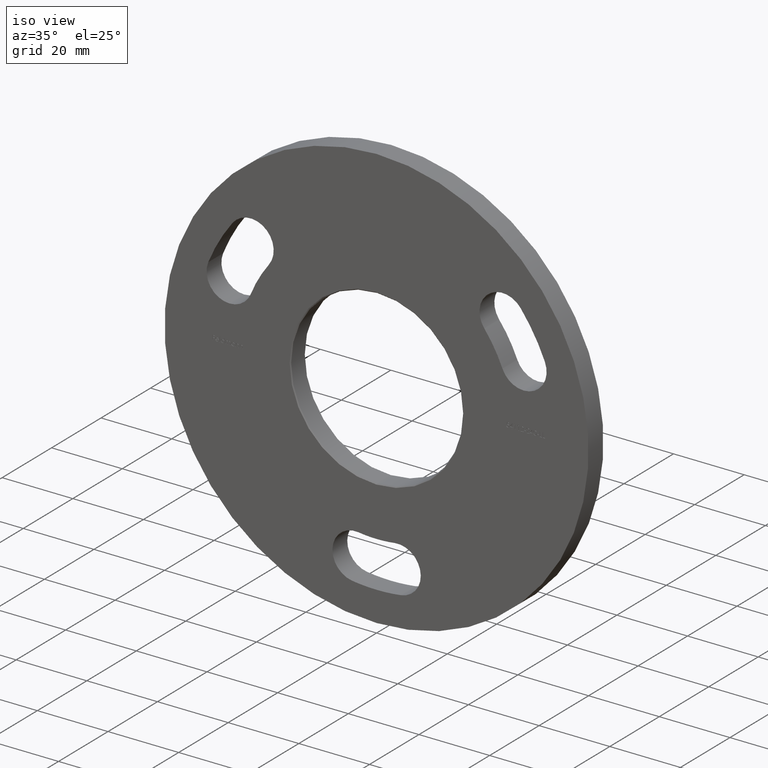
[diagram: clean part render]
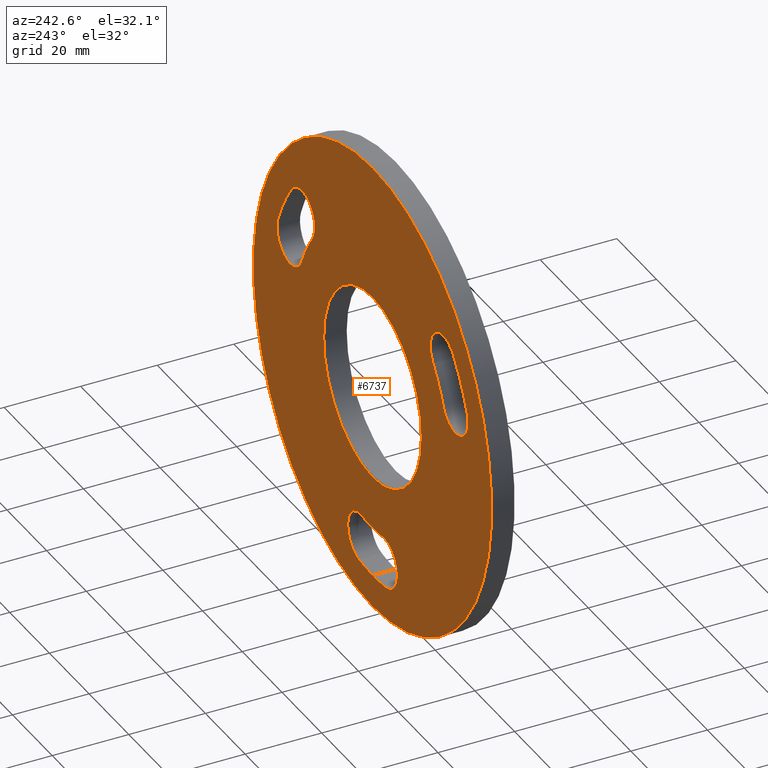
[diagram: tour spotlight — one face highlighted and labeled with its STEP entity id]
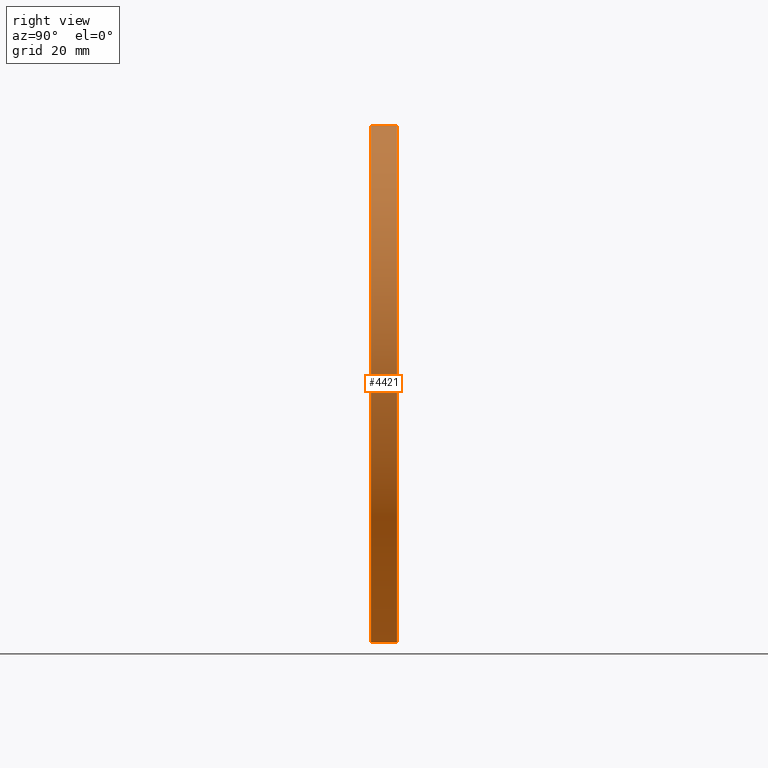
[diagram: tour spotlight — one face highlighted and labeled with its STEP entity id]
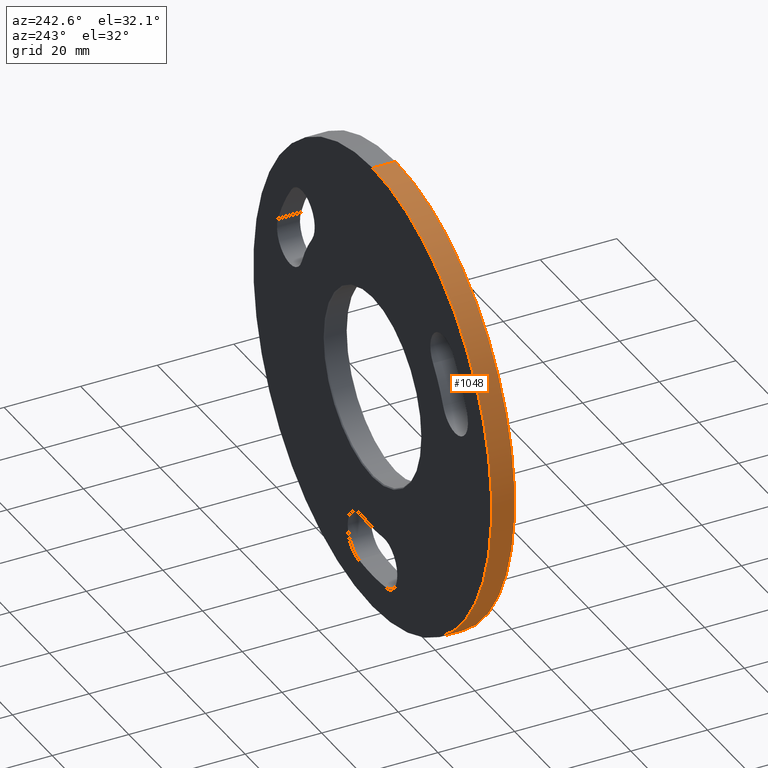
[diagram: tour spotlight — one face highlighted and labeled with its STEP entity id]
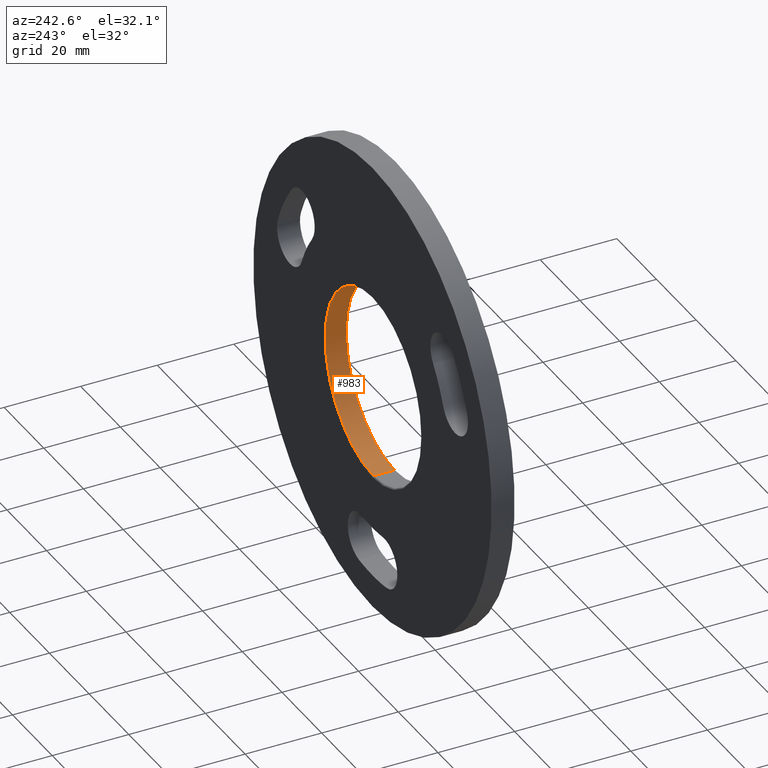
[diagram: tour spotlight — one face highlighted and labeled with its STEP entity id]
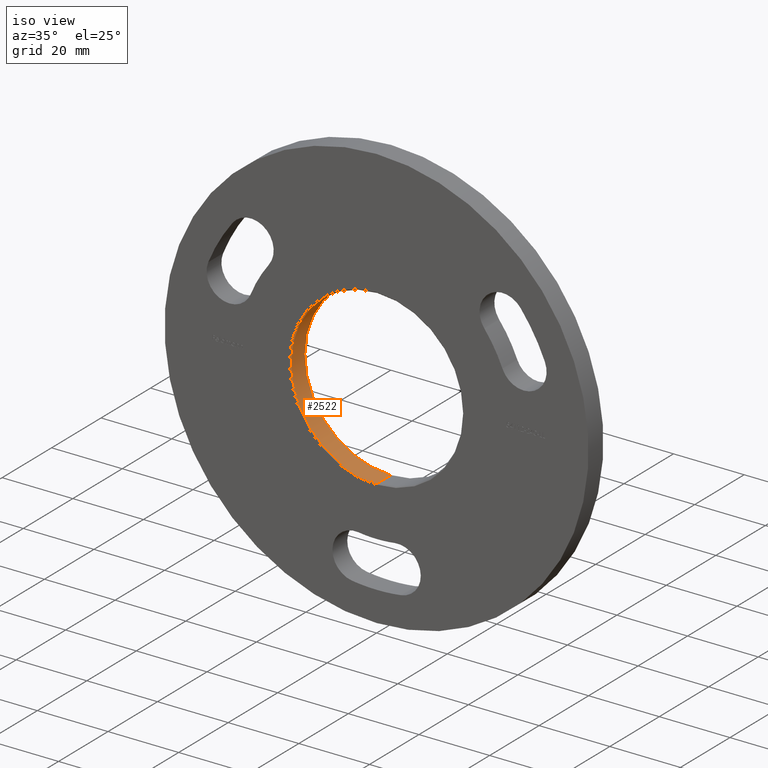
[diagram: tour spotlight — one face highlighted and labeled with its STEP entity id]
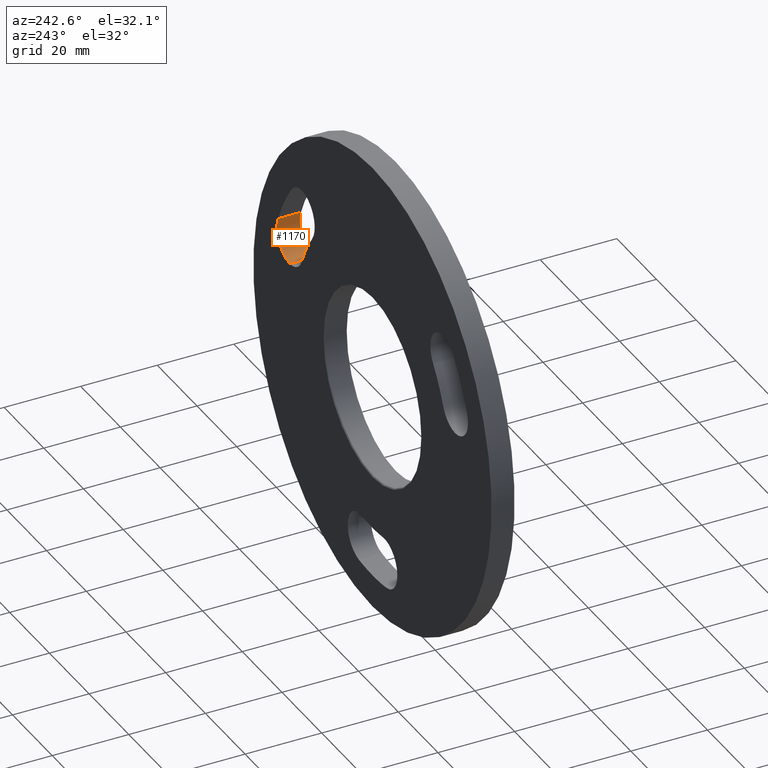
[diagram: tour spotlight — one face highlighted and labeled with its STEP entity id]
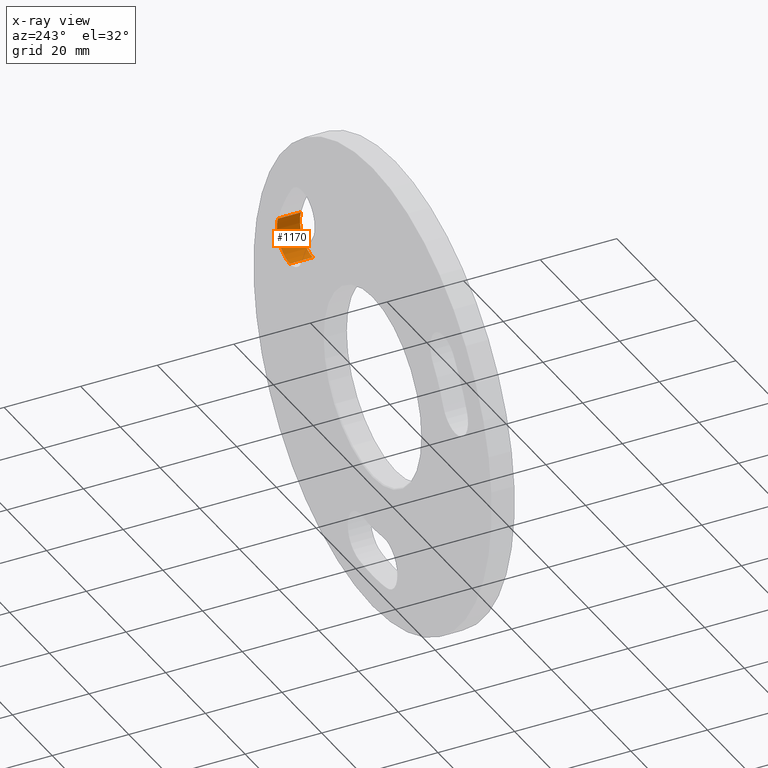
[diagram: x-ray of the same camera — body ghosted, this tour face saturated]
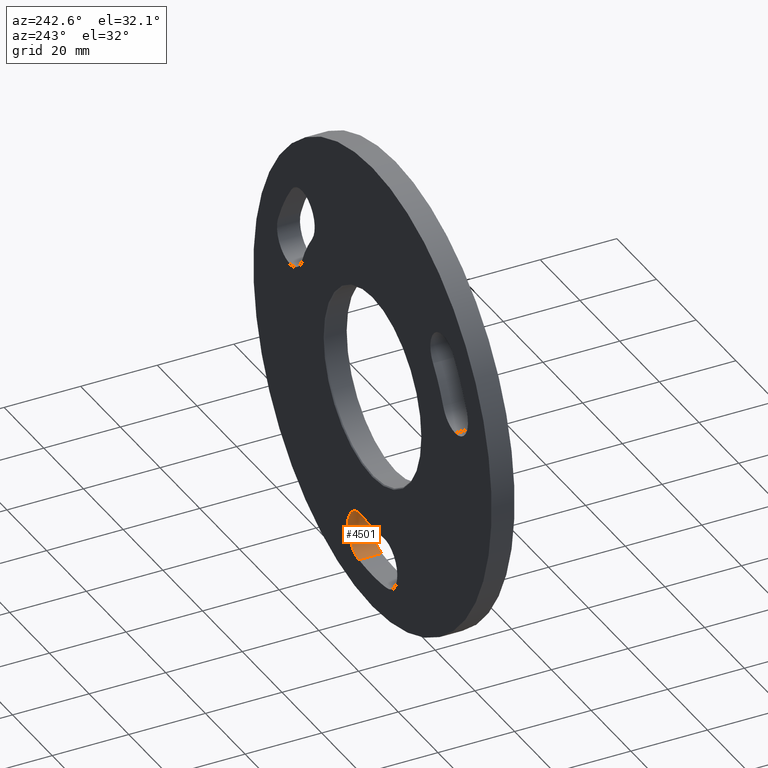
[diagram: tour spotlight — one face highlighted and labeled with its STEP entity id]
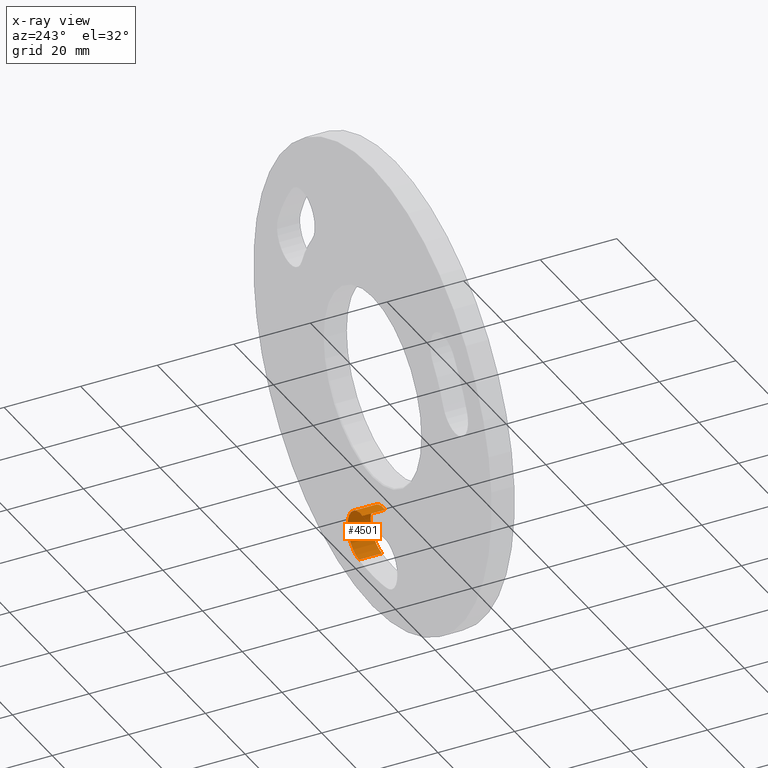
[diagram: x-ray of the same camera — body ghosted, this tour face saturated]
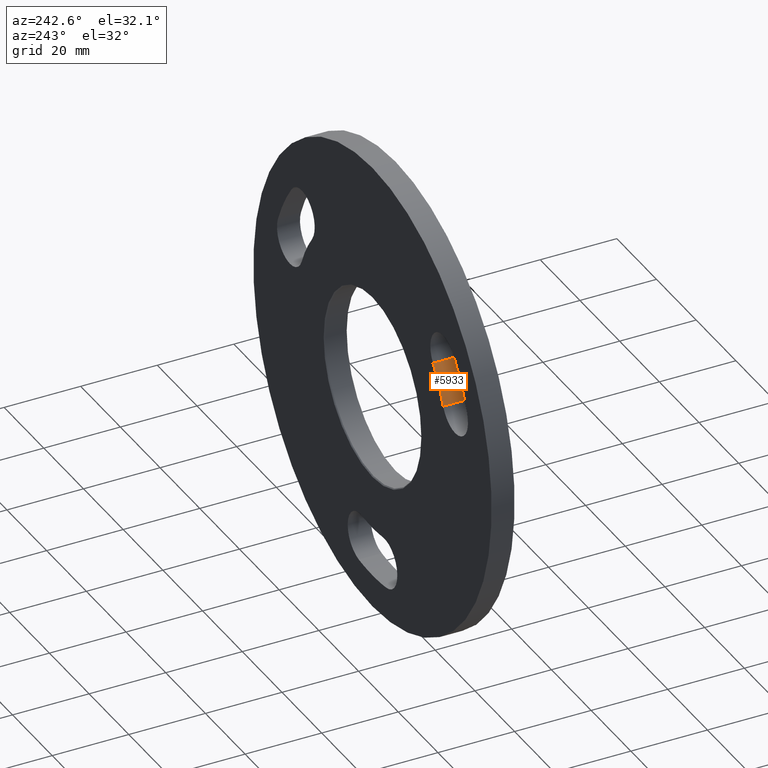
[diagram: tour spotlight — one face highlighted and labeled with its STEP entity id]
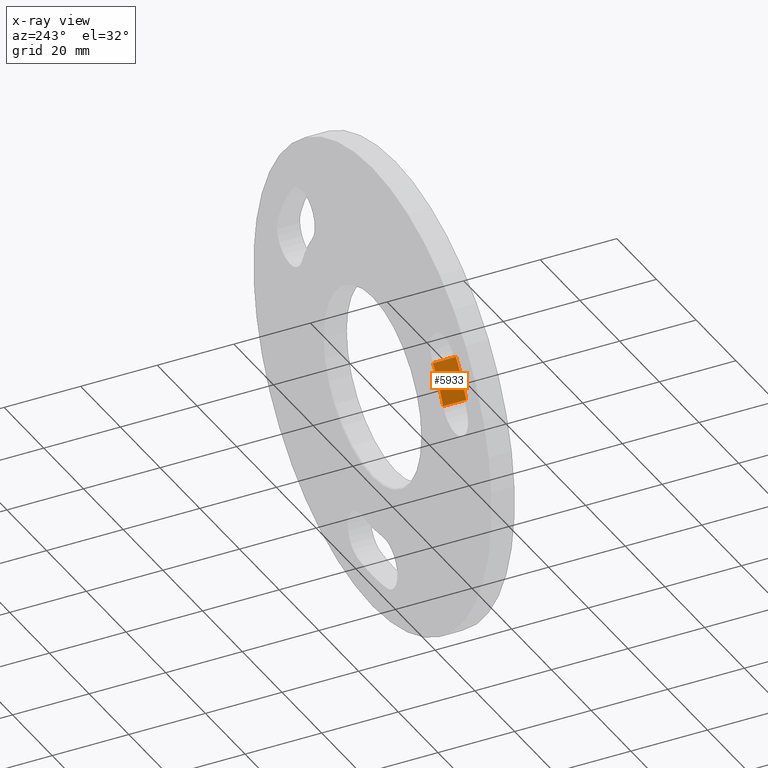
[diagram: x-ray of the same camera — body ghosted, this tour face saturated]
A machine part: a face-by-face anatomy tour. The part has 259 B-rep faces; the first image is the clean iso view, then the 8 largest visible faces are spotlighted one at a time (largest first), each with its STEP entity span.

Face 1 — auxiliary view, entity #6737. In plain terms, the highlighted planar face has unit normal (0, 1, 0).
Definition (entity closure, byte-faithful):
#6 = VERTEX_POINT ( 'NONE', #5877 ) ;
#90 = DIRECTION ( 'NONE',  ( 0.000000000000000000, 0.000000000000000000, 1.000000000000000000 ) ) ;
#118 = CARTESIAN_POINT ( 'NONE',  ( 0.000000000000000000, 6.000000000000000000, 6.591949208711866959E-14 ) ) ;
#174 = CARTESIAN_POINT ( 'NONE',  ( 0.000000000000000000, 6.000000000000000000, 0.000000000000000000 ) ) ;
#242 = EDGE_CURVE ( 'NONE', #3154, #4293, #11045, .T. ) ;
#326 = ORIENTED_EDGE ( 'NONE', *, *, #11225, .T. ) ;
#367 = AXIS2_PLACEMENT_3D ( 'NONE', #1939, #9537, #3868 ) ;
#398 = DIRECTION ( 'NONE',  ( 0.000000000000000000, 1.000000000000000000, 0.000000000000000000 ) ) ;
#405 = CIRCLE ( 'NONE', #634, 6.499999999999999112 ) ;
#506 = VERTEX_POINT ( 'NONE', #12064 ) ;
#510 = EDGE_CURVE ( 'NONE', #5806, #9481, #11631, .T. ) ;
#634 = AXIS2_PLACEMENT_3D ( 'NONE', #1988, #4910, #7563 ) ;
#827 = DIRECTION ( 'NONE',  ( 0.000000000000000000, 0.000000000000000000, 1.000000000000000000 ) ) ;
#912 = DIRECTION ( 'NONE',  ( 0.000000000000000000, 0.000000000000000000, 1.000000000000000000 ) ) ;
#930 = EDGE_LOOP ( 'NONE', ( #8584, #11611, #3054, #5804, #6367 ) ) ;
#1020 = EDGE_CURVE ( 'NONE', #8958, #11396, #12228, .T. ) ;
#1079 = CARTESIAN_POINT ( 'NONE',  ( 0.000000000000000000, 6.000000000000000000, 24.60000000000001208 ) ) ;
#1185 = ORIENTED_EDGE ( 'NONE', *, *, #12304, .F. ) ;
#1224 = CARTESIAN_POINT ( 'NONE',  ( -41.62317956875121183, 6.000000000000000000, 17.10295069827111902 ) ) ;
#1352 = CARTESIAN_POINT ( 'NONE',  ( 0.000000000000000000, 6.000000000000000000, 0.000000000000000000 ) ) ;
#1356 = CARTESIAN_POINT ( 'NONE',  ( -47.63541661757079737, 6.000000000000000000, 19.57337691024359927 ) ) ;
#1402 = CARTESIAN_POINT ( 'NONE',  ( 47.63541661757081158, 6.000000000000000000, 19.57337691024357795 ) ) ;
#1473 = ORIENTED_EDGE ( 'NONE', *, *, #510, .F. ) ;
#1555 = VERTEX_POINT ( 'NONE', #10460 ) ;
#1583 = EDGE_CURVE ( 'NONE', #11396, #4967, #11469, .T. ) ;
#1764 = VERTEX_POINT ( 'NONE', #12080 ) ;
#1789 = DIRECTION ( 'NONE',  ( -0.000000000000000000, -1.000000000000000000, -0.000000000000000000 ) ) ;
#1856 = AXIS2_PLACEMENT_3D ( 'NONE', #11473, #5704, #912 ) ;
#1900 = FACE_BOUND ( 'NONE', #4114, .T. ) ;
#1936 = CARTESIAN_POINT ( 'NONE',  ( 0.000000000000000000, 6.000000000000000000, 6.591949208711866959E-14 ) ) ;
#1939 = CARTESIAN_POINT ( 'NONE',  ( 0.000000000000000000, 6.000000000000000000, 6.591949208711866959E-14 ) ) ;
#1963 = CARTESIAN_POINT ( 'NONE',  ( -6.866666666666660035, 6.000000000000000000, -51.04016936579353114 ) ) ;
#1988 = CARTESIAN_POINT ( 'NONE',  ( 6.000000000000000000, 6.000000000000000000, -44.59820624195550920 ) ) ;
#2125 = CIRCLE ( 'NONE', #4772, 6.499999999999992006 ) ;
#2180 = ORIENTED_EDGE ( 'NONE', *, *, #11073, .F. ) ;
#2230 = DIRECTION ( 'NONE',  ( 0.000000000000000000, 0.000000000000000000, 1.000000000000000000 ) ) ;
#2259 = DIRECTION ( 'NONE',  ( 0.000000000000000000, 0.000000000000000000, 1.000000000000000000 ) ) ;
#2289 = AXIS2_PLACEMENT_3D ( 'NONE', #10165, #3188, #2230 ) ;
#2299 = DIRECTION ( 'NONE',  ( 0.000000000000000000, 0.000000000000000000, 1.000000000000000000 ) ) ;
#2451 = AXIS2_PLACEMENT_3D ( 'NONE', #1352, #8008, #2299 ) ;
#2657 = CARTESIAN_POINT ( 'NONE',  ( -6.000000000000000000, 6.000000000000000000, -44.59820624195550920 ) ) ;
#2751 = ORIENTED_EDGE ( 'NONE', *, *, #7125, .F. ) ;
#2785 = DIRECTION ( 'NONE',  ( 0.000000000000000000, 1.000000000000000000, 0.000000000000000000 ) ) ;
#2835 = CARTESIAN_POINT ( 'NONE',  ( 41.62317956875121183, 6.000000000000000000, 10.60295069827110126 ) ) ;
#2843 = PLANE ( 'NONE',  #4771 ) ;
#2877 = CIRCLE ( 'NONE', #3995, 38.49999999999996447 ) ;
#2889 = CIRCLE ( 'NONE', #5427, 6.499999999999995559 ) ;
#2900 = CIRCLE ( 'NONE', #3408, 51.50000000000005684 ) ;
#2911 = DIRECTION ( 'NONE',  ( -0.000000000000000000, -1.000000000000000000, -0.000000000000000000 ) ) ;
#2957 = DIRECTION ( 'NONE',  ( 0.000000000000000000, 1.000000000000000000, 0.000000000000000000 ) ) ;
#3032 = CARTESIAN_POINT ( 'NONE',  ( -5.133333333333335524, 6.000000000000000000, -38.15624311811749436 ) ) ;
#3054 = ORIENTED_EDGE ( 'NONE', *, *, #10445, .F. ) ;
#3096 = AXIS2_PLACEMENT_3D ( 'NONE', #3761, #2785, #11198 ) ;
#3117 = CARTESIAN_POINT ( 'NONE',  ( 0.000000000000000000, 6.000000000000000000, -60.00000000000000000 ) ) ;
#3132 = AXIS2_PLACEMENT_3D ( 'NONE', #2657, #7411, #10180 ) ;
#3154 = VERTEX_POINT ( 'NONE', #1402 ) ;
#3188 = DIRECTION ( 'NONE',  ( 0.000000000000000000, 1.000000000000000000, 0.000000000000000000 ) ) ;
#3217 = DIRECTION ( 'NONE',  ( 0.000000000000000000, 0.000000000000000000, 1.000000000000000000 ) ) ;
#3408 = AXIS2_PLACEMENT_3D ( 'NONE', #118, #6855, #6769 ) ;
#3761 = CARTESIAN_POINT ( 'NONE',  ( 0.000000000000000000, 6.000000000000000000, 6.591949208711866959E-14 ) ) ;
#3868 = DIRECTION ( 'NONE',  ( 0.000000000000000000, 0.000000000000000000, 1.000000000000000000 ) ) ;
#3893 = DIRECTION ( 'NONE',  ( 0.000000000000000000, 0.000000000000000000, 1.000000000000000000 ) ) ;
#3904 = ORIENTED_EDGE ( 'NONE', *, *, #8932, .T. ) ;
#3951 = DIRECTION ( 'NONE',  ( 0.000000000000000000, 0.000000000000000000, 1.000000000000000000 ) ) ;
#3995 = AXIS2_PLACEMENT_3D ( 'NONE', #1936, #5737, #90 ) ;
#4047 = AXIS2_PLACEMENT_3D ( 'NONE', #174, #8632, #3951 ) ;
#4114 = EDGE_LOOP ( 'NONE', ( #7076, #11965, #10616, #1185, #4438 ) ) ;
#4293 = VERTEX_POINT ( 'NONE', #2835 ) ;
#4397 = CARTESIAN_POINT ( 'NONE',  ( 41.62317956875121183, 6.000000000000000000, 17.10295069827109415 ) ) ;
#4401 = CARTESIAN_POINT ( 'NONE',  ( 40.76874995090414444, 6.000000000000000000, 31.46679245554991056 ) ) ;
#4438 = ORIENTED_EDGE ( 'NONE', *, *, #1583, .F. ) ;
#4453 = FACE_BOUND ( 'NONE', #930, .T. ) ;
#4547 = EDGE_LOOP ( 'NONE', ( #5578, #8058, #2751, #2180, #1473, #5214 ) ) ;
#4750 = FACE_BOUND ( 'NONE', #9557, .T. ) ;
#4767 = DIRECTION ( 'NONE',  ( -0.000000000000000000, -1.000000000000000000, -0.000000000000000000 ) ) ;
#4771 = AXIS2_PLACEMENT_3D ( 'NONE', #5730, #9397, #7554 ) ;
#4772 = AXIS2_PLACEMENT_3D ( 'NONE', #4397, #6338, #5470 ) ;
#4782 = VERTEX_POINT ( 'NONE', #7642 ) ;
#4861 = EDGE_CURVE ( 'NONE', #6009, #506, #8623, .T. ) ;
#4864 = VERTEX_POINT ( 'NONE', #11410 ) ;
#4910 = DIRECTION ( 'NONE',  ( 0.000000000000000000, 1.000000000000000000, 0.000000000000000000 ) ) ;
#4936 = EDGE_CURVE ( 'NONE', #6471, #1764, #8483, .T. ) ;
#4967 = VERTEX_POINT ( 'NONE', #10824 ) ;
#5047 = VERTEX_POINT ( 'NONE', #9975 ) ;
#5167 = DIRECTION ( 'NONE',  ( -0.000000000000000000, -1.000000000000000000, -0.000000000000000000 ) ) ;
#5214 = ORIENTED_EDGE ( 'NONE', *, *, #8525, .F. ) ;
#5333 = CIRCLE ( 'NONE', #6444, 38.50000000000006395 ) ;
#5427 = AXIS2_PLACEMENT_3D ( 'NONE', #11525, #2957, #9598 ) ;
#5470 = DIRECTION ( 'NONE',  ( 0.000000000000000000, 0.000000000000000000, 1.000000000000000000 ) ) ;
#5578 = ORIENTED_EDGE ( 'NONE', *, *, #9143, .F. ) ;
#5661 = VERTEX_POINT ( 'NONE', #4401 ) ;
#5704 = DIRECTION ( 'NONE',  ( 0.000000000000000000, 1.000000000000000000, 0.000000000000000000 ) ) ;
#5730 = CARTESIAN_POINT ( 'NONE',  ( 0.000000000000000000, 6.000000000000000000, 0.000000000000000000 ) ) ;
#5737 = DIRECTION ( 'NONE',  ( -0.000000000000000000, -1.000000000000000000, -0.000000000000000000 ) ) ;
#5804 = ORIENTED_EDGE ( 'NONE', *, *, #12181, .F. ) ;
#5806 = VERTEX_POINT ( 'NONE', #1963 ) ;
#5847 = CARTESIAN_POINT ( 'NONE',  ( 0.000000000000000000, 6.000000000000000000, 6.591949208711866959E-14 ) ) ;
#5873 = CARTESIAN_POINT ( 'NONE',  ( 35.61094251993158366, 6.000000000000000000, 14.63252448629860147 ) ) ;
#5877 = CARTESIAN_POINT ( 'NONE',  ( 0.000000000000000000, 6.000000000000000000, -51.50000000000000711 ) ) ;
#6009 = VERTEX_POINT ( 'NONE', #3117 ) ;
#6146 = AXIS2_PLACEMENT_3D ( 'NONE', #10471, #2911, #8657 ) ;
#6222 = DIRECTION ( 'NONE',  ( -0.000000000000000000, -1.000000000000000000, -0.000000000000000000 ) ) ;
#6338 = DIRECTION ( 'NONE',  ( 0.000000000000000000, 1.000000000000000000, 0.000000000000000000 ) ) ;
#6367 = ORIENTED_EDGE ( 'NONE', *, *, #242, .F. ) ;
#6406 = DIRECTION ( 'NONE',  ( 0.000000000000000000, 1.000000000000000000, 0.000000000000000000 ) ) ;
#6444 = AXIS2_PLACEMENT_3D ( 'NONE', #8372, #1789, #11153 ) ;
#6454 = CARTESIAN_POINT ( 'NONE',  ( -40.76874995090413734, 6.000000000000000000, 31.46679245554991056 ) ) ;
#6471 = VERTEX_POINT ( 'NONE', #10755 ) ;
#6533 = CARTESIAN_POINT ( 'NONE',  ( 41.62317956875121183, 6.000000000000000000, 17.10295069827109415 ) ) ;
#6737 = ADVANCED_FACE ( 'NONE', ( #4750, #9476, #6979, #4453, #1900 ), #2843, .T. ) ;
#6767 = CIRCLE ( 'NONE', #2451, 60.00000000000000000 ) ;
#6769 = DIRECTION ( 'NONE',  ( 0.000000000000000000, 0.000000000000000000, 1.000000000000000000 ) ) ;
#6855 = DIRECTION ( 'NONE',  ( 0.000000000000000000, 1.000000000000000000, 0.000000000000000000 ) ) ;
#6979 = FACE_BOUND ( 'NONE', #4547, .T. ) ;
#7010 = AXIS2_PLACEMENT_3D ( 'NONE', #10828, #6222, #2259 ) ;
#7042 = DIRECTION ( 'NONE',  ( 0.000000000000000000, 0.000000000000000000, 1.000000000000000000 ) ) ;
#7076 = ORIENTED_EDGE ( 'NONE', *, *, #1020, .F. ) ;
#7078 = AXIS2_PLACEMENT_3D ( 'NONE', #11770, #398, #7042 ) ;
#7125 = EDGE_CURVE ( 'NONE', #10087, #4864, #5333, .T. ) ;
#7371 = AXIS2_PLACEMENT_3D ( 'NONE', #6533, #6406, #827 ) ;
#7377 = ORIENTED_EDGE ( 'NONE', *, *, #10849, .T. ) ;
#7411 = DIRECTION ( 'NONE',  ( 0.000000000000000000, 1.000000000000000000, 0.000000000000000000 ) ) ;
#7554 = DIRECTION ( 'NONE',  ( 0.000000000000000000, -0.000000000000000000, 1.000000000000000000 ) ) ;
#7563 = DIRECTION ( 'NONE',  ( 0.000000000000000000, 0.000000000000000000, 1.000000000000000000 ) ) ;
#7642 = CARTESIAN_POINT ( 'NONE',  ( 30.47760918659825435, 6.000000000000000000, 23.52371863181886980 ) ) ;
#7848 = CIRCLE ( 'NONE', #7078, 6.499999999999992006 ) ;
#7918 = EDGE_CURVE ( 'NONE', #1764, #8958, #7848, .T. ) ;
#8008 = DIRECTION ( 'NONE',  ( 0.000000000000000000, 1.000000000000000000, 0.000000000000000000 ) ) ;
#8025 = ORIENTED_EDGE ( 'NONE', *, *, #4861, .T. ) ;
#8058 = ORIENTED_EDGE ( 'NONE', *, *, #8758, .F. ) ;
#8099 = AXIS2_PLACEMENT_3D ( 'NONE', #1224, #11656, #3217 ) ;
#8372 = CARTESIAN_POINT ( 'NONE',  ( 0.000000000000000000, 6.000000000000000000, 6.591949208711866959E-14 ) ) ;
#8483 = CIRCLE ( 'NONE', #8099, 6.499999999999992006 ) ;
#8525 = EDGE_CURVE ( 'NONE', #6, #5806, #10042, .T. ) ;
#8584 = ORIENTED_EDGE ( 'NONE', *, *, #12238, .F. ) ;
#8623 = CIRCLE ( 'NONE', #4047, 60.00000000000000000 ) ;
#8632 = DIRECTION ( 'NONE',  ( 0.000000000000000000, 1.000000000000000000, 0.000000000000000000 ) ) ;
#8657 = DIRECTION ( 'NONE',  ( 0.000000000000000000, 0.000000000000000000, 1.000000000000000000 ) ) ;
#8758 = EDGE_CURVE ( 'NONE', #4864, #5047, #405, .T. ) ;
#8769 = VERTEX_POINT ( 'NONE', #1079 ) ;
#8932 = EDGE_CURVE ( 'NONE', #8769, #1555, #10939, .T. ) ;
#8958 = VERTEX_POINT ( 'NONE', #1356 ) ;
#8963 = CIRCLE ( 'NONE', #3096, 51.49999999999995026 ) ;
#9143 = EDGE_CURVE ( 'NONE', #5047, #6, #2900, .T. ) ;
#9336 = CARTESIAN_POINT ( 'NONE',  ( 0.000000000000000000, 6.000000000000000000, -38.50000000000000711 ) ) ;
#9397 = DIRECTION ( 'NONE',  ( 0.000000000000000000, 1.000000000000000000, 0.000000000000000000 ) ) ;
#9476 = FACE_OUTER_BOUND ( 'NONE', #11430, .T. ) ;
#9481 = VERTEX_POINT ( 'NONE', #3032 ) ;
#9537 = DIRECTION ( 'NONE',  ( 0.000000000000000000, 1.000000000000000000, 0.000000000000000000 ) ) ;
#9557 = EDGE_LOOP ( 'NONE', ( #3904, #326 ) ) ;
#9598 = DIRECTION ( 'NONE',  ( 0.000000000000000000, 0.000000000000000000, 1.000000000000000000 ) ) ;
#9828 = EDGE_CURVE ( 'NONE', #4782, #5661, #2889, .T. ) ;
#9960 = DIRECTION ( 'NONE',  ( 0.000000000000000000, 0.000000000000000000, 1.000000000000000000 ) ) ;
#9975 = CARTESIAN_POINT ( 'NONE',  ( 6.866666666666672469, 6.000000000000000000, -51.04016936579353114 ) ) ;
#10041 = CARTESIAN_POINT ( 'NONE',  ( 0.000000000000000000, 6.000000000000000000, 0.000000000000000000 ) ) ;
#10042 = CIRCLE ( 'NONE', #2289, 51.50000000000005684 ) ;
#10087 = VERTEX_POINT ( 'NONE', #9336 ) ;
#10165 = CARTESIAN_POINT ( 'NONE',  ( 0.000000000000000000, 6.000000000000000000, 6.591949208711866959E-14 ) ) ;
#10180 = DIRECTION ( 'NONE',  ( 0.000000000000000000, 0.000000000000000000, 1.000000000000000000 ) ) ;
#10414 = VERTEX_POINT ( 'NONE', #5873 ) ;
#10445 = EDGE_CURVE ( 'NONE', #10414, #4782, #2877, .T. ) ;
#10460 = CARTESIAN_POINT ( 'NONE',  ( 3.012631125902490009E-15, 6.000000000000000000, -24.60000000000001208 ) ) ;
#10471 = CARTESIAN_POINT ( 'NONE',  ( 0.000000000000000000, 6.000000000000000000, 6.591949208711866959E-14 ) ) ;
#10483 = AXIS2_PLACEMENT_3D ( 'NONE', #10041, #5167, #9960 ) ;
#10606 = CIRCLE ( 'NONE', #10483, 24.60000000000001208 ) ;
#10616 = ORIENTED_EDGE ( 'NONE', *, *, #4936, .F. ) ;
#10755 = CARTESIAN_POINT ( 'NONE',  ( -35.61094251993159077, 6.000000000000000000, 14.63252448629860147 ) ) ;
#10824 = CARTESIAN_POINT ( 'NONE',  ( -30.47760918659824725, 6.000000000000000000, 23.52371863181888756 ) ) ;
#10828 = CARTESIAN_POINT ( 'NONE',  ( 0.000000000000000000, 6.000000000000000000, 0.000000000000000000 ) ) ;
#10849 = EDGE_CURVE ( 'NONE', #506, #6009, #6767, .T. ) ;
#10939 = CIRCLE ( 'NONE', #7010, 24.60000000000001208 ) ;
#11045 = CIRCLE ( 'NONE', #7371, 6.499999999999992006 ) ;
#11073 = EDGE_CURVE ( 'NONE', #9481, #10087, #12104, .T. ) ;
#11153 = DIRECTION ( 'NONE',  ( 0.000000000000000000, 0.000000000000000000, 1.000000000000000000 ) ) ;
#11198 = DIRECTION ( 'NONE',  ( 0.000000000000000000, 0.000000000000000000, 1.000000000000000000 ) ) ;
#11225 = EDGE_CURVE ( 'NONE', #1555, #8769, #10606, .T. ) ;
#11396 = VERTEX_POINT ( 'NONE', #6454 ) ;
#11410 = CARTESIAN_POINT ( 'NONE',  ( 5.133333333333340853, 6.000000000000000000, -38.15624311811749436 ) ) ;
#11430 = EDGE_LOOP ( 'NONE', ( #8025, #7377 ) ) ;
#11469 = CIRCLE ( 'NONE', #1856, 6.499999999999988454 ) ;
#11473 = CARTESIAN_POINT ( 'NONE',  ( -35.62317956875119052, 6.000000000000000000, 27.49525554368440439 ) ) ;
#11525 = CARTESIAN_POINT ( 'NONE',  ( 35.62317956875119762, 6.000000000000000000, 27.49525554368439018 ) ) ;
#11611 = ORIENTED_EDGE ( 'NONE', *, *, #9828, .F. ) ;
#11631 = CIRCLE ( 'NONE', #3132, 6.499999999999999112 ) ;
#11656 = DIRECTION ( 'NONE',  ( 0.000000000000000000, 1.000000000000000000, 0.000000000000000000 ) ) ;
#11770 = CARTESIAN_POINT ( 'NONE',  ( -41.62317956875121183, 6.000000000000000000, 17.10295069827111902 ) ) ;
#11951 = CIRCLE ( 'NONE', #6146, 38.49999999999996447 ) ;
#11965 = ORIENTED_EDGE ( 'NONE', *, *, #7918, .F. ) ;
#12019 = AXIS2_PLACEMENT_3D ( 'NONE', #5847, #4767, #3893 ) ;
#12064 = CARTESIAN_POINT ( 'NONE',  ( 7.347880794884118356E-15, 6.000000000000000000, 60.00000000000000000 ) ) ;
#12080 = CARTESIAN_POINT ( 'NONE',  ( -41.62317956875121183, 6.000000000000000000, 10.60295069827112613 ) ) ;
#12104 = CIRCLE ( 'NONE', #12019, 38.50000000000006395 ) ;
#12181 = EDGE_CURVE ( 'NONE', #4293, #10414, #2125, .T. ) ;
#12228 = CIRCLE ( 'NONE', #367, 51.49999999999995026 ) ;
#12238 = EDGE_CURVE ( 'NONE', #5661, #3154, #8963, .T. ) ;
#12304 = EDGE_CURVE ( 'NONE', #4967, #6471, #11951, .T. ) ;

Face 2 — right view, entity #4421. In plain terms, the highlighted cylindrical surface (partial cylindrical patch) has radius 60 mm, axis along (-0, -1, -0).
Definition (entity closure, byte-faithful):
#31 = CYLINDRICAL_SURFACE ( 'NONE', #5151, 60.00000000000000000 ) ;
#506 = VERTEX_POINT ( 'NONE', #12064 ) ;
#1099 = DIRECTION ( 'NONE',  ( 0.000000000000000000, 0.000000000000000000, -1.000000000000000000 ) ) ;
#1352 = CARTESIAN_POINT ( 'NONE',  ( 0.000000000000000000, 6.000000000000000000, 0.000000000000000000 ) ) ;
#1424 = VERTEX_POINT ( 'NONE', #10131 ) ;
#1600 = ORIENTED_EDGE ( 'NONE', *, *, #3670, .T. ) ;
#2299 = DIRECTION ( 'NONE',  ( 0.000000000000000000, 0.000000000000000000, 1.000000000000000000 ) ) ;
#2451 = AXIS2_PLACEMENT_3D ( 'NONE', #1352, #8008, #2299 ) ;
#2486 = EDGE_CURVE ( 'NONE', #1424, #10141, #3124, .T. ) ;
#2575 = CARTESIAN_POINT ( 'NONE',  ( 0.000000000000000000, 0.000000000000000000, -60.00000000000000000 ) ) ;
#3045 = CARTESIAN_POINT ( 'NONE',  ( 0.000000000000000000, 0.000000000000000000, 0.000000000000000000 ) ) ;
#3117 = CARTESIAN_POINT ( 'NONE',  ( 0.000000000000000000, 6.000000000000000000, -60.00000000000000000 ) ) ;
#3124 = CIRCLE ( 'NONE', #11987, 60.00000000000000000 ) ;
#3670 = EDGE_CURVE ( 'NONE', #506, #1424, #6882, .T. ) ;
#4051 = VECTOR ( 'NONE', #4291, 1000.000000000000000 ) ;
#4291 = DIRECTION ( 'NONE',  ( -0.000000000000000000, -1.000000000000000000, -0.000000000000000000 ) ) ;
#4421 = ADVANCED_FACE ( 'NONE', ( #6116 ), #31, .T. ) ;
#4835 = ORIENTED_EDGE ( 'NONE', *, *, #9085, .F. ) ;
#5151 = AXIS2_PLACEMENT_3D ( 'NONE', #6811, #6720, #1099 ) ;
#6009 = VERTEX_POINT ( 'NONE', #3117 ) ;
#6116 = FACE_OUTER_BOUND ( 'NONE', #8563, .T. ) ;
#6152 = CARTESIAN_POINT ( 'NONE',  ( 7.347880794884118356E-15, 6.000000000000000000, 60.00000000000000000 ) ) ;
#6192 = VECTOR ( 'NONE', #11534, 1000.000000000000000 ) ;
#6720 = DIRECTION ( 'NONE',  ( -0.000000000000000000, -1.000000000000000000, -0.000000000000000000 ) ) ;
#6767 = CIRCLE ( 'NONE', #2451, 60.00000000000000000 ) ;
#6811 = CARTESIAN_POINT ( 'NONE',  ( 0.000000000000000000, 6.000000000000000000, 0.000000000000000000 ) ) ;
#6882 = LINE ( 'NONE', #6152, #4051 ) ;
#7440 = ORIENTED_EDGE ( 'NONE', *, *, #10849, .F. ) ;
#7919 = DIRECTION ( 'NONE',  ( 0.000000000000000000, 0.000000000000000000, 1.000000000000000000 ) ) ;
#8008 = DIRECTION ( 'NONE',  ( 0.000000000000000000, 1.000000000000000000, 0.000000000000000000 ) ) ;
#8563 = EDGE_LOOP ( 'NONE', ( #7440, #1600, #10573, #4835 ) ) ;
#8704 = CARTESIAN_POINT ( 'NONE',  ( 0.000000000000000000, 6.000000000000000000, -60.00000000000000000 ) ) ;
#8718 = LINE ( 'NONE', #8704, #6192 ) ;
#8781 = DIRECTION ( 'NONE',  ( 0.000000000000000000, 1.000000000000000000, 0.000000000000000000 ) ) ;
#9085 = EDGE_CURVE ( 'NONE', #6009, #10141, #8718, .T. ) ;
#10131 = CARTESIAN_POINT ( 'NONE',  ( 7.347880794884118356E-15, 0.000000000000000000, 60.00000000000000000 ) ) ;
#10141 = VERTEX_POINT ( 'NONE', #2575 ) ;
#10573 = ORIENTED_EDGE ( 'NONE', *, *, #2486, .T. ) ;
#10849 = EDGE_CURVE ( 'NONE', #506, #6009, #6767, .T. ) ;
#11534 = DIRECTION ( 'NONE',  ( -0.000000000000000000, -1.000000000000000000, -0.000000000000000000 ) ) ;
#11987 = AXIS2_PLACEMENT_3D ( 'NONE', #3045, #8781, #7919 ) ;
#12064 = CARTESIAN_POINT ( 'NONE',  ( 7.347880794884118356E-15, 6.000000000000000000, 60.00000000000000000 ) ) ;

Face 3 — auxiliary view, entity #1048. In plain terms, the highlighted cylindrical surface (partial cylindrical patch) has radius 60 mm, axis along (-0, -1, -0).
Definition (entity closure, byte-faithful):
#174 = CARTESIAN_POINT ( 'NONE',  ( 0.000000000000000000, 6.000000000000000000, 0.000000000000000000 ) ) ;
#401 = ORIENTED_EDGE ( 'NONE', *, *, #3670, .F. ) ;
#506 = VERTEX_POINT ( 'NONE', #12064 ) ;
#1048 = ADVANCED_FACE ( 'NONE', ( #9980 ), #1074, .T. ) ;
#1074 = CYLINDRICAL_SURFACE ( 'NONE', #3539, 60.00000000000000000 ) ;
#1230 = DIRECTION ( 'NONE',  ( -0.000000000000000000, -1.000000000000000000, -0.000000000000000000 ) ) ;
#1341 = ORIENTED_EDGE ( 'NONE', *, *, #4861, .F. ) ;
#1424 = VERTEX_POINT ( 'NONE', #10131 ) ;
#2575 = CARTESIAN_POINT ( 'NONE',  ( 0.000000000000000000, 0.000000000000000000, -60.00000000000000000 ) ) ;
#3079 = ORIENTED_EDGE ( 'NONE', *, *, #9085, .T. ) ;
#3117 = CARTESIAN_POINT ( 'NONE',  ( 0.000000000000000000, 6.000000000000000000, -60.00000000000000000 ) ) ;
#3539 = AXIS2_PLACEMENT_3D ( 'NONE', #9709, #1230, #8835 ) ;
#3670 = EDGE_CURVE ( 'NONE', #506, #1424, #6882, .T. ) ;
#3951 = DIRECTION ( 'NONE',  ( 0.000000000000000000, 0.000000000000000000, 1.000000000000000000 ) ) ;
#4047 = AXIS2_PLACEMENT_3D ( 'NONE', #174, #8632, #3951 ) ;
#4051 = VECTOR ( 'NONE', #4291, 1000.000000000000000 ) ;
#4291 = DIRECTION ( 'NONE',  ( -0.000000000000000000, -1.000000000000000000, -0.000000000000000000 ) ) ;
#4861 = EDGE_CURVE ( 'NONE', #6009, #506, #8623, .T. ) ;
#5042 = CARTESIAN_POINT ( 'NONE',  ( 0.000000000000000000, 0.000000000000000000, 0.000000000000000000 ) ) ;
#5347 = CIRCLE ( 'NONE', #5882, 60.00000000000000000 ) ;
#5882 = AXIS2_PLACEMENT_3D ( 'NONE', #5042, #6850, #8850 ) ;
#6002 = EDGE_CURVE ( 'NONE', #10141, #1424, #5347, .T. ) ;
#6009 = VERTEX_POINT ( 'NONE', #3117 ) ;
#6152 = CARTESIAN_POINT ( 'NONE',  ( 7.347880794884118356E-15, 6.000000000000000000, 60.00000000000000000 ) ) ;
#6192 = VECTOR ( 'NONE', #11534, 1000.000000000000000 ) ;
#6850 = DIRECTION ( 'NONE',  ( 0.000000000000000000, 1.000000000000000000, 0.000000000000000000 ) ) ;
#6882 = LINE ( 'NONE', #6152, #4051 ) ;
#8479 = EDGE_LOOP ( 'NONE', ( #401, #1341, #3079, #11285 ) ) ;
#8623 = CIRCLE ( 'NONE', #4047, 60.00000000000000000 ) ;
#8632 = DIRECTION ( 'NONE',  ( 0.000000000000000000, 1.000000000000000000, 0.000000000000000000 ) ) ;
#8704 = CARTESIAN_POINT ( 'NONE',  ( 0.000000000000000000, 6.000000000000000000, -60.00000000000000000 ) ) ;
#8718 = LINE ( 'NONE', #8704, #6192 ) ;
#8835 = DIRECTION ( 'NONE',  ( 0.000000000000000000, 0.000000000000000000, -1.000000000000000000 ) ) ;
#8850 = DIRECTION ( 'NONE',  ( 0.000000000000000000, 0.000000000000000000, 1.000000000000000000 ) ) ;
#9085 = EDGE_CURVE ( 'NONE', #6009, #10141, #8718, .T. ) ;
#9709 = CARTESIAN_POINT ( 'NONE',  ( 0.000000000000000000, 6.000000000000000000, 0.000000000000000000 ) ) ;
#9980 = FACE_OUTER_BOUND ( 'NONE', #8479, .T. ) ;
#10131 = CARTESIAN_POINT ( 'NONE',  ( 7.347880794884118356E-15, 0.000000000000000000, 60.00000000000000000 ) ) ;
#10141 = VERTEX_POINT ( 'NONE', #2575 ) ;
#11285 = ORIENTED_EDGE ( 'NONE', *, *, #6002, .T. ) ;
#11534 = DIRECTION ( 'NONE',  ( -0.000000000000000000, -1.000000000000000000, -0.000000000000000000 ) ) ;
#12064 = CARTESIAN_POINT ( 'NONE',  ( 7.347880794884118356E-15, 6.000000000000000000, 60.00000000000000000 ) ) ;

Face 4 — auxiliary view, entity #983. In plain terms, the highlighted cylindrical surface (partial cylindrical patch) has radius 24.35 mm, axis along (-0, 1, -0).
Definition (entity closure, byte-faithful):
#50 = CARTESIAN_POINT ( 'NONE',  ( 0.000000000000000000, 0.2499999999999794054, 0.000000000000000000 ) ) ;
#154 = DIRECTION ( 'NONE',  ( -0.000000000000000000, 1.000000000000000000, -0.000000000000000000 ) ) ;
#599 = AXIS2_PLACEMENT_3D ( 'NONE', #947, #1118, #4826 ) ;
#947 = CARTESIAN_POINT ( 'NONE',  ( 0.000000000000000000, 0.000000000000000000, 0.000000000000000000 ) ) ;
#983 = ADVANCED_FACE ( 'NONE', ( #1957 ), #5246, .F. ) ;
#1118 = DIRECTION ( 'NONE',  ( -0.000000000000000000, 1.000000000000000000, -0.000000000000000000 ) ) ;
#1431 = CARTESIAN_POINT ( 'NONE',  ( 0.000000000000000000, 0.2499999999999794054, 24.35000000000000497 ) ) ;
#1658 = CIRCLE ( 'NONE', #4919, 24.35000000000000497 ) ;
#1957 = FACE_OUTER_BOUND ( 'NONE', #8890, .T. ) ;
#2867 = LINE ( 'NONE', #9700, #7504 ) ;
#2954 = CARTESIAN_POINT ( 'NONE',  ( 0.000000000000000000, 5.749999999999992895, 24.35000000000000497 ) ) ;
#3511 = CARTESIAN_POINT ( 'NONE',  ( 2.982014955923805433E-15, 0.2499999999999794054, -24.35000000000000497 ) ) ;
#3855 = EDGE_CURVE ( 'NONE', #5743, #7712, #1658, .T. ) ;
#3874 = CIRCLE ( 'NONE', #6519, 24.35000000000000497 ) ;
#4197 = CARTESIAN_POINT ( 'NONE',  ( 0.000000000000000000, 5.749999999999992895, 0.000000000000000000 ) ) ;
#4826 = DIRECTION ( 'NONE',  ( 0.000000000000000000, 0.000000000000000000, 1.000000000000000000 ) ) ;
#4919 = AXIS2_PLACEMENT_3D ( 'NONE', #50, #11546, #6693 ) ;
#4971 = EDGE_CURVE ( 'NONE', #7188, #5904, #3874, .T. ) ;
#5067 = ORIENTED_EDGE ( 'NONE', *, *, #4971, .T. ) ;
#5246 = CYLINDRICAL_SURFACE ( 'NONE', #599, 24.35000000000000497 ) ;
#5743 = VERTEX_POINT ( 'NONE', #3511 ) ;
#5843 = CARTESIAN_POINT ( 'NONE',  ( 0.000000000000000000, 0.000000000000000000, 24.35000000000000497 ) ) ;
#5904 = VERTEX_POINT ( 'NONE', #11642 ) ;
#6519 = AXIS2_PLACEMENT_3D ( 'NONE', #4197, #9899, #8826 ) ;
#6693 = DIRECTION ( 'NONE',  ( 0.000000000000000000, 0.000000000000000000, 1.000000000000000000 ) ) ;
#7188 = VERTEX_POINT ( 'NONE', #2954 ) ;
#7504 = VECTOR ( 'NONE', #7967, 1000.000000000000000 ) ;
#7712 = VERTEX_POINT ( 'NONE', #1431 ) ;
#7967 = DIRECTION ( 'NONE',  ( -0.000000000000000000, 1.000000000000000000, -0.000000000000000000 ) ) ;
#8826 = DIRECTION ( 'NONE',  ( 0.000000000000000000, 0.000000000000000000, 1.000000000000000000 ) ) ;
#8890 = EDGE_LOOP ( 'NONE', ( #10371, #11208, #11577, #5067 ) ) ;
#9425 = LINE ( 'NONE', #5843, #12116 ) ;
#9700 = CARTESIAN_POINT ( 'NONE',  ( 2.982014955923805433E-15, 0.000000000000000000, -24.35000000000000497 ) ) ;
#9899 = DIRECTION ( 'NONE',  ( 0.000000000000000000, 1.000000000000000000, 0.000000000000000000 ) ) ;
#9981 = EDGE_CURVE ( 'NONE', #7712, #7188, #9425, .T. ) ;
#10371 = ORIENTED_EDGE ( 'NONE', *, *, #11533, .F. ) ;
#11208 = ORIENTED_EDGE ( 'NONE', *, *, #3855, .T. ) ;
#11533 = EDGE_CURVE ( 'NONE', #5743, #5904, #2867, .T. ) ;
#11546 = DIRECTION ( 'NONE',  ( -0.000000000000000000, -1.000000000000000000, -0.000000000000000000 ) ) ;
#11577 = ORIENTED_EDGE ( 'NONE', *, *, #9981, .T. ) ;
#11642 = CARTESIAN_POINT ( 'NONE',  ( 2.982014955923805433E-15, 5.749999999999992895, -24.35000000000000497 ) ) ;
#12116 = VECTOR ( 'NONE', #154, 1000.000000000000000 ) ;

Face 5 — iso view, entity #2522. In plain terms, the highlighted cylindrical surface (partial cylindrical patch) has radius 24.35 mm, axis along (-0, 1, -0).
Definition (entity closure, byte-faithful):
#154 = DIRECTION ( 'NONE',  ( -0.000000000000000000, 1.000000000000000000, -0.000000000000000000 ) ) ;
#910 = FACE_OUTER_BOUND ( 'NONE', #1346, .T. ) ;
#1259 = EDGE_CURVE ( 'NONE', #5904, #7188, #7908, .T. ) ;
#1346 = EDGE_LOOP ( 'NONE', ( #8519, #12098, #3066, #3467 ) ) ;
#1431 = CARTESIAN_POINT ( 'NONE',  ( 0.000000000000000000, 0.2499999999999794054, 24.35000000000000497 ) ) ;
#1927 = EDGE_CURVE ( 'NONE', #7712, #5743, #2535, .T. ) ;
#2522 = ADVANCED_FACE ( 'NONE', ( #910 ), #12049, .F. ) ;
#2535 = CIRCLE ( 'NONE', #5392, 24.35000000000000497 ) ;
#2680 = DIRECTION ( 'NONE',  ( 0.000000000000000000, 0.000000000000000000, 1.000000000000000000 ) ) ;
#2867 = LINE ( 'NONE', #9700, #7504 ) ;
#2954 = CARTESIAN_POINT ( 'NONE',  ( 0.000000000000000000, 5.749999999999992895, 24.35000000000000497 ) ) ;
#3066 = ORIENTED_EDGE ( 'NONE', *, *, #1259, .T. ) ;
#3467 = ORIENTED_EDGE ( 'NONE', *, *, #9981, .F. ) ;
#3511 = CARTESIAN_POINT ( 'NONE',  ( 2.982014955923805433E-15, 0.2499999999999794054, -24.35000000000000497 ) ) ;
#5392 = AXIS2_PLACEMENT_3D ( 'NONE', #11214, #8387, #2680 ) ;
#5743 = VERTEX_POINT ( 'NONE', #3511 ) ;
#5843 = CARTESIAN_POINT ( 'NONE',  ( 0.000000000000000000, 0.000000000000000000, 24.35000000000000497 ) ) ;
#5904 = VERTEX_POINT ( 'NONE', #11642 ) ;
#6521 = DIRECTION ( 'NONE',  ( 0.000000000000000000, 1.000000000000000000, 0.000000000000000000 ) ) ;
#6562 = DIRECTION ( 'NONE',  ( 0.000000000000000000, 0.000000000000000000, 1.000000000000000000 ) ) ;
#7188 = VERTEX_POINT ( 'NONE', #2954 ) ;
#7427 = CARTESIAN_POINT ( 'NONE',  ( 0.000000000000000000, 5.749999999999992895, 0.000000000000000000 ) ) ;
#7504 = VECTOR ( 'NONE', #7967, 1000.000000000000000 ) ;
#7712 = VERTEX_POINT ( 'NONE', #1431 ) ;
#7908 = CIRCLE ( 'NONE', #11265, 24.35000000000000497 ) ;
#7959 = DIRECTION ( 'NONE',  ( 0.000000000000000000, 0.000000000000000000, 1.000000000000000000 ) ) ;
#7967 = DIRECTION ( 'NONE',  ( -0.000000000000000000, 1.000000000000000000, -0.000000000000000000 ) ) ;
#8387 = DIRECTION ( 'NONE',  ( -0.000000000000000000, -1.000000000000000000, -0.000000000000000000 ) ) ;
#8519 = ORIENTED_EDGE ( 'NONE', *, *, #1927, .T. ) ;
#9425 = LINE ( 'NONE', #5843, #12116 ) ;
#9700 = CARTESIAN_POINT ( 'NONE',  ( 2.982014955923805433E-15, 0.000000000000000000, -24.35000000000000497 ) ) ;
#9850 = CARTESIAN_POINT ( 'NONE',  ( 0.000000000000000000, 0.000000000000000000, 0.000000000000000000 ) ) ;
#9981 = EDGE_CURVE ( 'NONE', #7712, #7188, #9425, .T. ) ;
#10652 = DIRECTION ( 'NONE',  ( -0.000000000000000000, 1.000000000000000000, -0.000000000000000000 ) ) ;
#11214 = CARTESIAN_POINT ( 'NONE',  ( 0.000000000000000000, 0.2499999999999794054, 0.000000000000000000 ) ) ;
#11265 = AXIS2_PLACEMENT_3D ( 'NONE', #7427, #6521, #6562 ) ;
#11533 = EDGE_CURVE ( 'NONE', #5743, #5904, #2867, .T. ) ;
#11642 = CARTESIAN_POINT ( 'NONE',  ( 2.982014955923805433E-15, 5.749999999999992895, -24.35000000000000497 ) ) ;
#11818 = AXIS2_PLACEMENT_3D ( 'NONE', #9850, #10652, #7959 ) ;
#12049 = CYLINDRICAL_SURFACE ( 'NONE', #11818, 24.35000000000000497 ) ;
#12098 = ORIENTED_EDGE ( 'NONE', *, *, #11533, .T. ) ;
#12116 = VECTOR ( 'NONE', #154, 1000.000000000000000 ) ;

Face 6 — auxiliary view, entity #1170. An x-ray twin of the same camera follows (body ghosted, this face saturated) — the face is partly hidden behind the body. In plain terms, the highlighted cylindrical surface (edge-blend (fillet) strip) has radius 6.5 mm, axis along (-0, -1, -0).
Definition (entity closure, byte-faithful):
#242 = EDGE_CURVE ( 'NONE', #3154, #4293, #11045, .T. ) ;
#827 = DIRECTION ( 'NONE',  ( 0.000000000000000000, 0.000000000000000000, 1.000000000000000000 ) ) ;
#1011 = CARTESIAN_POINT ( 'NONE',  ( 47.63541661757081158, 0.000000000000000000, 19.57337691024357795 ) ) ;
#1170 = ADVANCED_FACE ( 'NONE', ( #8502 ), #5974, .F. ) ;
#1196 = VECTOR ( 'NONE', #5654, 1000.000000000000000 ) ;
#1238 = EDGE_LOOP ( 'NONE', ( #4695, #10226, #11893, #8216 ) ) ;
#1332 = LINE ( 'NONE', #11334, #1196 ) ;
#1392 = VECTOR ( 'NONE', #11986, 1000.000000000000000 ) ;
#1402 = CARTESIAN_POINT ( 'NONE',  ( 47.63541661757081158, 6.000000000000000000, 19.57337691024357795 ) ) ;
#1622 = AXIS2_PLACEMENT_3D ( 'NONE', #5321, #9194, #5399 ) ;
#2227 = DIRECTION ( 'NONE',  ( 0.000000000000000000, 1.000000000000000000, 0.000000000000000000 ) ) ;
#2464 = VERTEX_POINT ( 'NONE', #1011 ) ;
#2835 = CARTESIAN_POINT ( 'NONE',  ( 41.62317956875121183, 6.000000000000000000, 10.60295069827110126 ) ) ;
#3154 = VERTEX_POINT ( 'NONE', #1402 ) ;
#4293 = VERTEX_POINT ( 'NONE', #2835 ) ;
#4439 = CARTESIAN_POINT ( 'NONE',  ( 41.62317956875121183, 6.000000000000000000, 10.60295069827110126 ) ) ;
#4695 = ORIENTED_EDGE ( 'NONE', *, *, #242, .T. ) ;
#4900 = EDGE_CURVE ( 'NONE', #3154, #2464, #1332, .T. ) ;
#5321 = CARTESIAN_POINT ( 'NONE',  ( 41.62317956875121183, 6.000000000000000000, 17.10295069827109415 ) ) ;
#5399 = DIRECTION ( 'NONE',  ( 0.000000000000000000, 0.000000000000000000, -1.000000000000000000 ) ) ;
#5587 = VERTEX_POINT ( 'NONE', #7343 ) ;
#5654 = DIRECTION ( 'NONE',  ( -0.000000000000000000, -1.000000000000000000, -0.000000000000000000 ) ) ;
#5974 = CYLINDRICAL_SURFACE ( 'NONE', #1622, 6.499999999999992006 ) ;
#6406 = DIRECTION ( 'NONE',  ( 0.000000000000000000, 1.000000000000000000, 0.000000000000000000 ) ) ;
#6459 = EDGE_CURVE ( 'NONE', #2464, #5587, #9178, .T. ) ;
#6533 = CARTESIAN_POINT ( 'NONE',  ( 41.62317956875121183, 6.000000000000000000, 17.10295069827109415 ) ) ;
#7058 = LINE ( 'NONE', #4439, #1392 ) ;
#7343 = CARTESIAN_POINT ( 'NONE',  ( 41.62317956875121183, 0.000000000000000000, 10.60295069827110126 ) ) ;
#7371 = AXIS2_PLACEMENT_3D ( 'NONE', #6533, #6406, #827 ) ;
#7936 = CARTESIAN_POINT ( 'NONE',  ( 41.62317956875121183, 0.000000000000000000, 17.10295069827109415 ) ) ;
#8216 = ORIENTED_EDGE ( 'NONE', *, *, #4900, .F. ) ;
#8502 = FACE_OUTER_BOUND ( 'NONE', #1238, .T. ) ;
#8871 = DIRECTION ( 'NONE',  ( 0.000000000000000000, 0.000000000000000000, 1.000000000000000000 ) ) ;
#9178 = CIRCLE ( 'NONE', #12241, 6.499999999999992006 ) ;
#9194 = DIRECTION ( 'NONE',  ( -0.000000000000000000, -1.000000000000000000, -0.000000000000000000 ) ) ;
#10226 = ORIENTED_EDGE ( 'NONE', *, *, #12159, .T. ) ;
#11045 = CIRCLE ( 'NONE', #7371, 6.499999999999992006 ) ;
#11334 = CARTESIAN_POINT ( 'NONE',  ( 47.63541661757081158, 6.000000000000000000, 19.57337691024357795 ) ) ;
#11893 = ORIENTED_EDGE ( 'NONE', *, *, #6459, .F. ) ;
#11986 = DIRECTION ( 'NONE',  ( -0.000000000000000000, -1.000000000000000000, -0.000000000000000000 ) ) ;
#12159 = EDGE_CURVE ( 'NONE', #4293, #5587, #7058, .T. ) ;
#12241 = AXIS2_PLACEMENT_3D ( 'NONE', #7936, #2227, #8871 ) ;

Face 7 — auxiliary view, entity #4501. An x-ray twin of the same camera follows (body ghosted, this face saturated) — the face is partly hidden behind the body. In plain terms, the highlighted cylindrical surface (edge-blend (fillet) strip) has radius 6.5 mm, axis along (-0, -1, -0).
Definition (entity closure, byte-faithful):
#405 = CIRCLE ( 'NONE', #634, 6.499999999999999112 ) ;
#416 = EDGE_CURVE ( 'NONE', #4864, #2923, #2555, .T. ) ;
#634 = AXIS2_PLACEMENT_3D ( 'NONE', #1988, #4910, #7563 ) ;
#1156 = EDGE_CURVE ( 'NONE', #5047, #6718, #10874, .T. ) ;
#1988 = CARTESIAN_POINT ( 'NONE',  ( 6.000000000000000000, 6.000000000000000000, -44.59820624195550920 ) ) ;
#2555 = LINE ( 'NONE', #6049, #9842 ) ;
#2862 = ORIENTED_EDGE ( 'NONE', *, *, #416, .F. ) ;
#2923 = VERTEX_POINT ( 'NONE', #10635 ) ;
#3244 = CARTESIAN_POINT ( 'NONE',  ( 6.000000000000000000, 6.000000000000000000, -44.59820624195550920 ) ) ;
#3619 = DIRECTION ( 'NONE',  ( 0.000000000000000000, 1.000000000000000000, 0.000000000000000000 ) ) ;
#3816 = CARTESIAN_POINT ( 'NONE',  ( 6.866666666666672469, 0.000000000000000000, -51.04016936579353114 ) ) ;
#4052 = ORIENTED_EDGE ( 'NONE', *, *, #11330, .F. ) ;
#4468 = ORIENTED_EDGE ( 'NONE', *, *, #1156, .T. ) ;
#4501 = ADVANCED_FACE ( 'NONE', ( #7310 ), #11467, .F. ) ;
#4864 = VERTEX_POINT ( 'NONE', #11410 ) ;
#4910 = DIRECTION ( 'NONE',  ( 0.000000000000000000, 1.000000000000000000, 0.000000000000000000 ) ) ;
#5047 = VERTEX_POINT ( 'NONE', #9975 ) ;
#5361 = EDGE_LOOP ( 'NONE', ( #4052, #2862, #5968, #4468 ) ) ;
#5503 = CARTESIAN_POINT ( 'NONE',  ( 6.000000000000000000, 0.000000000000000000, -44.59820624195550920 ) ) ;
#5968 = ORIENTED_EDGE ( 'NONE', *, *, #8758, .T. ) ;
#6049 = CARTESIAN_POINT ( 'NONE',  ( 5.133333333333340853, 6.000000000000000000, -38.15624311811749436 ) ) ;
#6270 = DIRECTION ( 'NONE',  ( -0.000000000000000000, -1.000000000000000000, -0.000000000000000000 ) ) ;
#6437 = CARTESIAN_POINT ( 'NONE',  ( 6.866666666666672469, 6.000000000000000000, -51.04016936579353114 ) ) ;
#6718 = VERTEX_POINT ( 'NONE', #3816 ) ;
#7310 = FACE_OUTER_BOUND ( 'NONE', #5361, .T. ) ;
#7563 = DIRECTION ( 'NONE',  ( 0.000000000000000000, 0.000000000000000000, 1.000000000000000000 ) ) ;
#8043 = DIRECTION ( 'NONE',  ( -0.000000000000000000, -1.000000000000000000, -0.000000000000000000 ) ) ;
#8197 = DIRECTION ( 'NONE',  ( 0.000000000000000000, 0.000000000000000000, 1.000000000000000000 ) ) ;
#8758 = EDGE_CURVE ( 'NONE', #4864, #5047, #405, .T. ) ;
#9711 = CIRCLE ( 'NONE', #11131, 6.499999999999999112 ) ;
#9842 = VECTOR ( 'NONE', #8043, 1000.000000000000000 ) ;
#9975 = CARTESIAN_POINT ( 'NONE',  ( 6.866666666666672469, 6.000000000000000000, -51.04016936579353114 ) ) ;
#10635 = CARTESIAN_POINT ( 'NONE',  ( 5.133333333333340853, 0.000000000000000000, -38.15624311811749436 ) ) ;
#10689 = DIRECTION ( 'NONE',  ( -0.000000000000000000, -1.000000000000000000, -0.000000000000000000 ) ) ;
#10848 = DIRECTION ( 'NONE',  ( 0.000000000000000000, 0.000000000000000000, -1.000000000000000000 ) ) ;
#10874 = LINE ( 'NONE', #6437, #11022 ) ;
#11022 = VECTOR ( 'NONE', #6270, 1000.000000000000000 ) ;
#11131 = AXIS2_PLACEMENT_3D ( 'NONE', #5503, #3619, #8197 ) ;
#11330 = EDGE_CURVE ( 'NONE', #2923, #6718, #9711, .T. ) ;
#11410 = CARTESIAN_POINT ( 'NONE',  ( 5.133333333333340853, 6.000000000000000000, -38.15624311811749436 ) ) ;
#11467 = CYLINDRICAL_SURFACE ( 'NONE', #11516, 6.499999999999999112 ) ;
#11516 = AXIS2_PLACEMENT_3D ( 'NONE', #3244, #10689, #10848 ) ;

Face 8 — auxiliary view, entity #5933. An x-ray twin of the same camera follows (body ghosted, this face saturated) — the face is partly hidden behind the body. In plain terms, the highlighted cylindrical surface (partial cylindrical patch) has radius 38.5 mm, axis along (-0, -1, -0).
Definition (entity closure, byte-faithful):
#169 = ORIENTED_EDGE ( 'NONE', *, *, #4098, .T. ) ;
#353 = CARTESIAN_POINT ( 'NONE',  ( 0.000000000000000000, 6.000000000000000000, 6.591949208711866959E-14 ) ) ;
#949 = ORIENTED_EDGE ( 'NONE', *, *, #12304, .T. ) ;
#1175 = DIRECTION ( 'NONE',  ( -0.000000000000000000, -1.000000000000000000, -0.000000000000000000 ) ) ;
#1643 = AXIS2_PLACEMENT_3D ( 'NONE', #353, #1175, #9802 ) ;
#2070 = VERTEX_POINT ( 'NONE', #5020 ) ;
#2688 = VECTOR ( 'NONE', #9311, 1000.000000000000000 ) ;
#2911 = DIRECTION ( 'NONE',  ( -0.000000000000000000, -1.000000000000000000, -0.000000000000000000 ) ) ;
#4098 = EDGE_CURVE ( 'NONE', #6471, #2070, #5229, .T. ) ;
#4309 = CYLINDRICAL_SURFACE ( 'NONE', #1643, 38.49999999999997868 ) ;
#4384 = DIRECTION ( 'NONE',  ( 0.000000000000000000, 0.000000000000000000, 1.000000000000000000 ) ) ;
#4597 = LINE ( 'NONE', #9671, #9023 ) ;
#4751 = EDGE_CURVE ( 'NONE', #4996, #2070, #11449, .T. ) ;
#4967 = VERTEX_POINT ( 'NONE', #10824 ) ;
#4996 = VERTEX_POINT ( 'NONE', #7257 ) ;
#5020 = CARTESIAN_POINT ( 'NONE',  ( -35.61094251993159077, 0.000000000000000000, 14.63252448629860147 ) ) ;
#5229 = LINE ( 'NONE', #8378, #2688 ) ;
#5663 = ORIENTED_EDGE ( 'NONE', *, *, #6363, .F. ) ;
#5933 = ADVANCED_FACE ( 'NONE', ( #8018 ), #4309, .T. ) ;
#5953 = AXIS2_PLACEMENT_3D ( 'NONE', #8157, #10043, #4384 ) ;
#6061 = ORIENTED_EDGE ( 'NONE', *, *, #4751, .F. ) ;
#6146 = AXIS2_PLACEMENT_3D ( 'NONE', #10471, #2911, #8657 ) ;
#6363 = EDGE_CURVE ( 'NONE', #4967, #4996, #4597, .T. ) ;
#6471 = VERTEX_POINT ( 'NONE', #10755 ) ;
#7257 = CARTESIAN_POINT ( 'NONE',  ( -30.47760918659824725, 0.000000000000000000, 23.52371863181888756 ) ) ;
#8018 = FACE_OUTER_BOUND ( 'NONE', #9648, .T. ) ;
#8157 = CARTESIAN_POINT ( 'NONE',  ( 0.000000000000000000, 0.000000000000000000, 6.591949208711866959E-14 ) ) ;
#8378 = CARTESIAN_POINT ( 'NONE',  ( -35.61094251993159077, 6.000000000000000000, 14.63252448629860147 ) ) ;
#8657 = DIRECTION ( 'NONE',  ( 0.000000000000000000, 0.000000000000000000, 1.000000000000000000 ) ) ;
#9023 = VECTOR ( 'NONE', #9624, 1000.000000000000000 ) ;
#9311 = DIRECTION ( 'NONE',  ( -0.000000000000000000, -1.000000000000000000, -0.000000000000000000 ) ) ;
#9624 = DIRECTION ( 'NONE',  ( -0.000000000000000000, -1.000000000000000000, -0.000000000000000000 ) ) ;
#9648 = EDGE_LOOP ( 'NONE', ( #6061, #5663, #949, #169 ) ) ;
#9671 = CARTESIAN_POINT ( 'NONE',  ( -30.47760918659824725, 6.000000000000000000, 23.52371863181888756 ) ) ;
#9802 = DIRECTION ( 'NONE',  ( 0.000000000000000000, 0.000000000000000000, -1.000000000000000000 ) ) ;
#10043 = DIRECTION ( 'NONE',  ( -0.000000000000000000, -1.000000000000000000, -0.000000000000000000 ) ) ;
#10471 = CARTESIAN_POINT ( 'NONE',  ( 0.000000000000000000, 6.000000000000000000, 6.591949208711866959E-14 ) ) ;
#10755 = CARTESIAN_POINT ( 'NONE',  ( -35.61094251993159077, 6.000000000000000000, 14.63252448629860147 ) ) ;
#10824 = CARTESIAN_POINT ( 'NONE',  ( -30.47760918659824725, 6.000000000000000000, 23.52371863181888756 ) ) ;
#11449 = CIRCLE ( 'NONE', #5953, 38.49999999999996447 ) ;
#11951 = CIRCLE ( 'NONE', #6146, 38.49999999999996447 ) ;
#12304 = EDGE_CURVE ( 'NONE', #4967, #6471, #11951, .T. ) ;